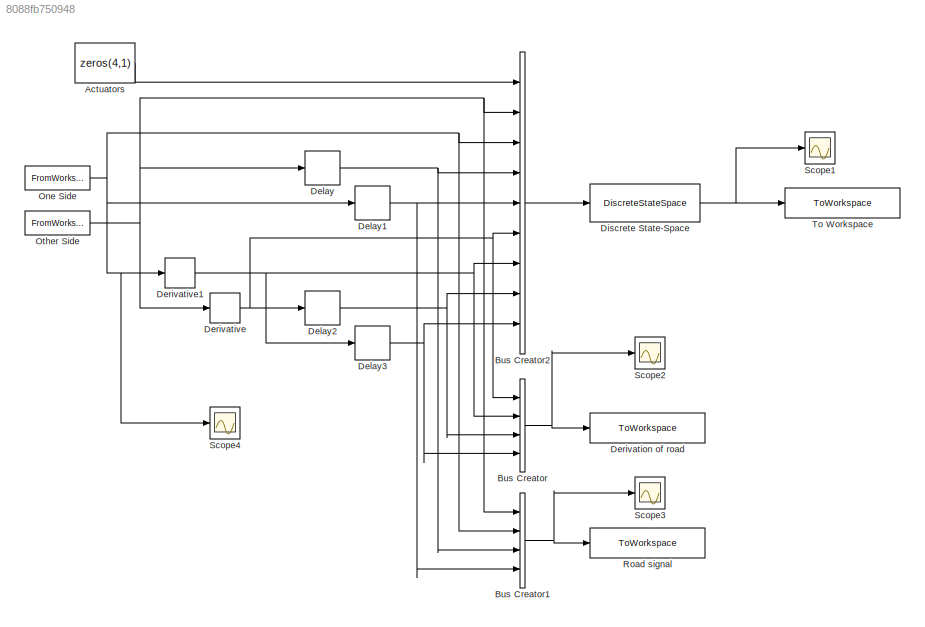
MODEL slx_8088fb750948
KIND model
BLOCK [Constant] Actuators
  Value = zeros(4,1)
BLOCK [BusCreator] Bus Creator
  DisplayOption = bar
  Ports = [4, 1]
BLOCK [BusCreator] Bus Creator1
  DisplayOption = bar
  Ports = [4, 1]
BLOCK [BusCreator] Bus Creator2
  DisplayOption = bar
  Inputs = 9
  Ports = [9, 1]
BLOCK [Delay] Delay
  DelayLength = 224
  InputPortMap = u0
  Ports = [1, 1]
  SampleTime = .005
BLOCK [Delay] Delay1
  DelayLength = 224
  InputPortMap = u0
  Ports = [1, 1]
  SampleTime = .005
BLOCK [Delay] Delay2
  DelayLength = 224
  InputPortMap = u0
  Ports = [1, 1]
  SampleTime = .005
BLOCK [Delay] Delay3
  DelayLength = 224
  InputPortMap = u0
  Ports = [1, 1]
  SampleTime = .005
BLOCK [ToWorkspace] Derivation of road
  MaxDataPoints = inf
  Ports = [1]
  SampleTime = -1
  SaveFormat = Timeseries
  VariableName = w_dot
BLOCK [Derivative] Derivative
BLOCK [Derivative] Derivative1
BLOCK [DiscreteStateSpace] Discrete State-Space
  A = Ad
  B = [Bdu Bdw]
  C = Cd
  D = Dd
  SampleTime = .005
BLOCK [FromWorkspace] One Side
  SampleTime = 0
  VariableName = [t, road1]
  ZeroCross = on
BLOCK [FromWorkspace] Other Side
  SampleTime = 0
  VariableName = [t, road2]
  ZeroCross = on
BLOCK [ToWorkspace] Road signal
  MaxDataPoints = inf
  Ports = [1]
  SampleTime = -1
  SaveFormat = Timeseries
  VariableName = w
BLOCK [Scope] Scope1
  DataFormat = StructureWithTime
  Floating = off
  NumInputPorts = 1
  Ports = [1]
  SampleTime = 0
  SaveName = ScopeData1
  ShowLegends = on
  TickLabels = on
  TimeRange = 20
BLOCK [Scope] Scope2
  DataFormat = StructureWithTime
  Floating = off
  NumInputPorts = 1
  Ports = [1]
  SampleTime = 0
  ShowLegends = on
  TickLabels = on
  TimeRange = 15
BLOCK [Scope] Scope3
  DataFormat = StructureWithTime
  Floating = off
  NumInputPorts = 1
  Ports = [1]
  SampleTime = 0
  SaveName = ScopeData2
  ShowLegends = on
  TickLabels = on
  TimeRange = 20
BLOCK [Scope] Scope4
  DataFormat = StructureWithTime
  Floating = off
  LegendLocations = 0.9098     0.93163    0.057146    0.016089
  NumInputPorts = 1
  Ports = [1]
  SampleTime = 0
  SaveName = ScopeData3
  ShowLegends = on
  TickLabels = on
  TimeRange = 15
BLOCK [ToWorkspace] To Workspace
  MaxDataPoints = inf
  Ports = [1]
  SampleTime = -1
  SaveFormat = Timeseries
  VariableName = output_nocontrol
LINE Actuators:1 -> Bus Creator2:1
NET Bus Creator1:1 -> Road signal:1, Scope3:1
LINE Bus Creator2:1 -> Discrete State-Space:1
NET Bus Creator:1 -> Derivation of road:1, Scope2:1
NET Delay1:1 -> Bus Creator1:4, Bus Creator2:5
NET Delay2:1 -> Bus Creator2:8, Bus Creator:3
NET Delay3:1 -> Bus Creator2:9, Bus Creator:4
NET Delay:1 -> Bus Creator1:3, Bus Creator2:4
NET Derivative1:1 -> Bus Creator2:7, Bus Creator:2, Delay3:1
NET Derivative:1 -> Bus Creator2:6, Bus Creator:1, Delay2:1
NET Discrete State-Space:1 -> Scope1:1, To Workspace:1
NET One Side:1 -> Bus Creator1:2, Bus Creator2:3, Delay1:1, Derivative1:1, Scope4:1
NET Other Side:1 -> Bus Creator1:1, Bus Creator2:2, Delay:1, Derivative:1
note: NET lines group one-source signal fan-out (src -> all destinations, sorted); 1:1 wires keep LINE
